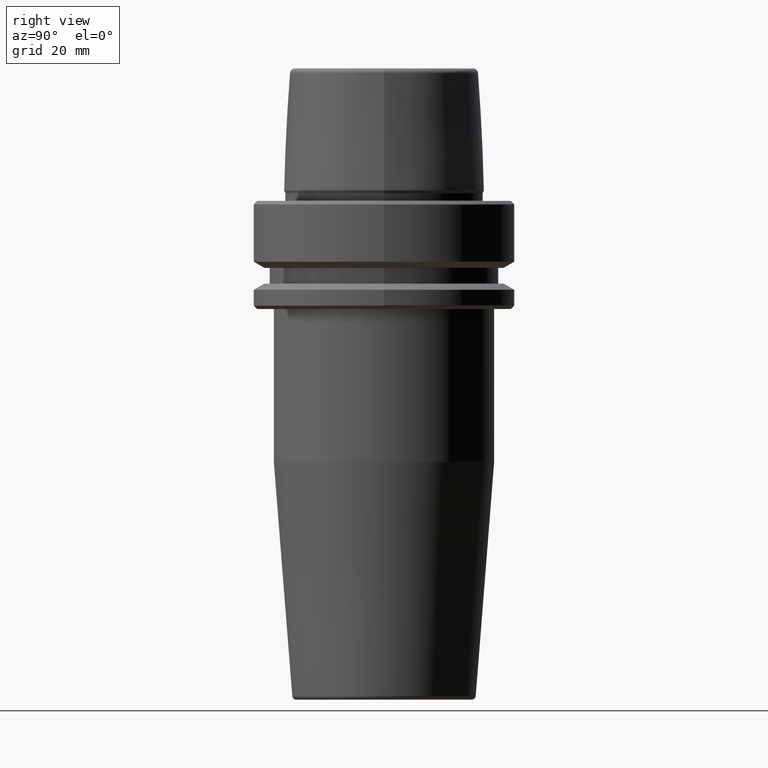
[diagram: clean part render]
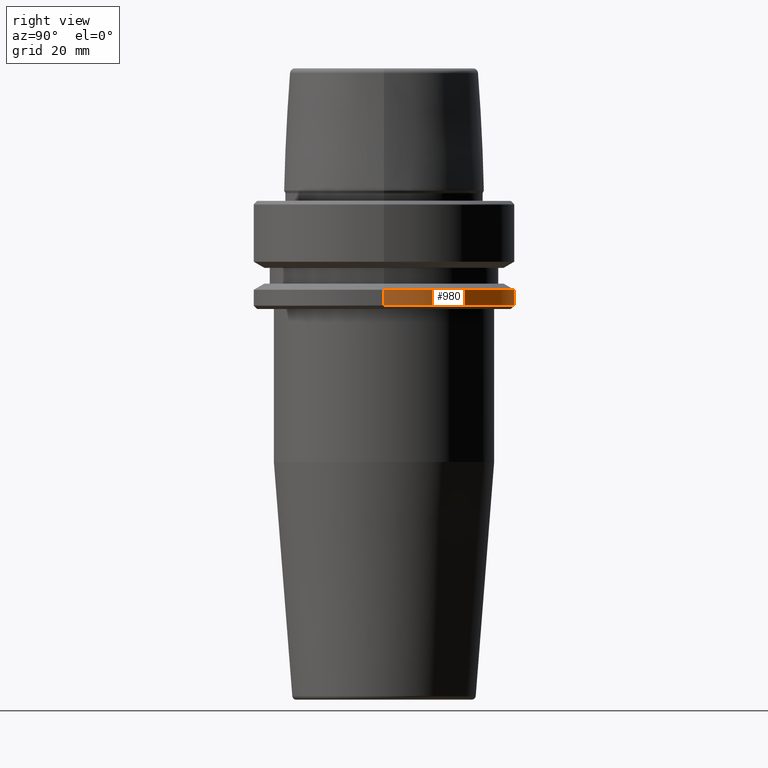
[diagram: same view with one face highlighted and labeled with its STEP entity id]
A machine part, right view. The second image highlights one B-rep face of the part: STEP entity #980.
In plain terms, the highlighted cylindrical surface (partial cylindrical patch) has radius 31.5 mm, axis along (-0, -0, 1).
Its self-contained STEP definition (entity closure, byte-faithful):
#18 = DIRECTION ( 'NONE',  ( -0.0000000000000000000, -0.0000000000000000000, 1.000000000000000000 ) ) ;
#21 = ORIENTED_EDGE ( 'NONE', *, *, #1090, .T. ) ;
#65 = EDGE_CURVE ( 'NONE', #931, #155, #685, .T. ) ;
#76 = ORIENTED_EDGE ( 'NONE', *, *, #337, .T. ) ;
#115 = CARTESIAN_POINT ( 'NONE',  ( 31.50000000000000000, 0.0000000000000000000, 78.96908074195309300 ) ) ;
#128 = DIRECTION ( 'NONE',  ( -0.0000000000000000000, -0.0000000000000000000, 1.000000000000000000 ) ) ;
#142 = EDGE_CURVE ( 'NONE', #1245, #931, #580, .T. ) ;
#155 = VERTEX_POINT ( 'NONE', #691 ) ;
#197 = AXIS2_PLACEMENT_3D ( 'NONE', #488, #128, #1197 ) ;
#201 = CARTESIAN_POINT ( 'NONE',  ( 31.50000000000000000, 0.0000000000000000000, -25.03431457505077200 ) ) ;
#214 = CARTESIAN_POINT ( 'NONE',  ( -31.50000000000000000, 3.857637417314162700E-015, 78.96908074195309300 ) ) ;
#271 = CARTESIAN_POINT ( 'NONE',  ( 0.0000000000000000000, 0.0000000000000000000, -25.03431457505077200 ) ) ;
#278 = CIRCLE ( 'NONE', #890, 31.50000000000000000 ) ;
#291 = ORIENTED_EDGE ( 'NONE', *, *, #142, .F. ) ;
#337 = EDGE_CURVE ( 'NONE', #860, #155, #1249, .T. ) ;
#366 = DIRECTION ( 'NONE',  ( -0.0000000000000000000, -0.0000000000000000000, 1.000000000000000000 ) ) ;
#488 = CARTESIAN_POINT ( 'NONE',  ( 0.0000000000000000000, 0.0000000000000000000, 78.96908074195309300 ) ) ;
#575 = FACE_OUTER_BOUND ( 'NONE', #587, .T. ) ;
#580 = LINE ( 'NONE', #115, #1147 ) ;
#587 = EDGE_LOOP ( 'NONE', ( #21, #76, #1174, #291 ) ) ;
#606 = DIRECTION ( 'NONE',  ( 1.000000000000000000, 0.0000000000000000000, 0.0000000000000000000 ) ) ;
#685 = CIRCLE ( 'NONE', #1082, 31.50000000000000000 ) ;
#691 = CARTESIAN_POINT ( 'NONE',  ( -31.50000000000000000, 3.857637417314162700E-015, -21.37749907475931700 ) ) ;
#760 = VECTOR ( 'NONE', #1148, 1000.000000000000000 ) ;
#860 = VERTEX_POINT ( 'NONE', #935 ) ;
#890 = AXIS2_PLACEMENT_3D ( 'NONE', #271, #947, #606 ) ;
#931 = VERTEX_POINT ( 'NONE', #1024 ) ;
#935 = CARTESIAN_POINT ( 'NONE',  ( -31.50000000000000000, 3.857637417314161900E-015, -25.03431457505077200 ) ) ;
#947 = DIRECTION ( 'NONE',  ( -0.0000000000000000000, -0.0000000000000000000, 1.000000000000000000 ) ) ;
#980 = ADVANCED_FACE ( 'NONE', ( #575 ), #1126, .T. ) ;
#1015 = DIRECTION ( 'NONE',  ( 1.000000000000000000, 0.0000000000000000000, 0.0000000000000000000 ) ) ;
#1024 = CARTESIAN_POINT ( 'NONE',  ( 31.50000000000000000, 0.0000000000000000000, -21.37749907475931700 ) ) ;
#1082 = AXIS2_PLACEMENT_3D ( 'NONE', #1200, #366, #1015 ) ;
#1090 = EDGE_CURVE ( 'NONE', #1245, #860, #278, .T. ) ;
#1126 = CYLINDRICAL_SURFACE ( 'NONE', #197, 31.50000000000000000 ) ;
#1147 = VECTOR ( 'NONE', #18, 1000.000000000000000 ) ;
#1148 = DIRECTION ( 'NONE',  ( -0.0000000000000000000, -0.0000000000000000000, 1.000000000000000000 ) ) ;
#1174 = ORIENTED_EDGE ( 'NONE', *, *, #65, .F. ) ;
#1197 = DIRECTION ( 'NONE',  ( 1.000000000000000000, 0.0000000000000000000, 0.0000000000000000000 ) ) ;
#1200 = CARTESIAN_POINT ( 'NONE',  ( 0.0000000000000000000, 0.0000000000000000000, -21.37749907475931700 ) ) ;
#1245 = VERTEX_POINT ( 'NONE', #201 ) ;
#1249 = LINE ( 'NONE', #214, #760 ) ;